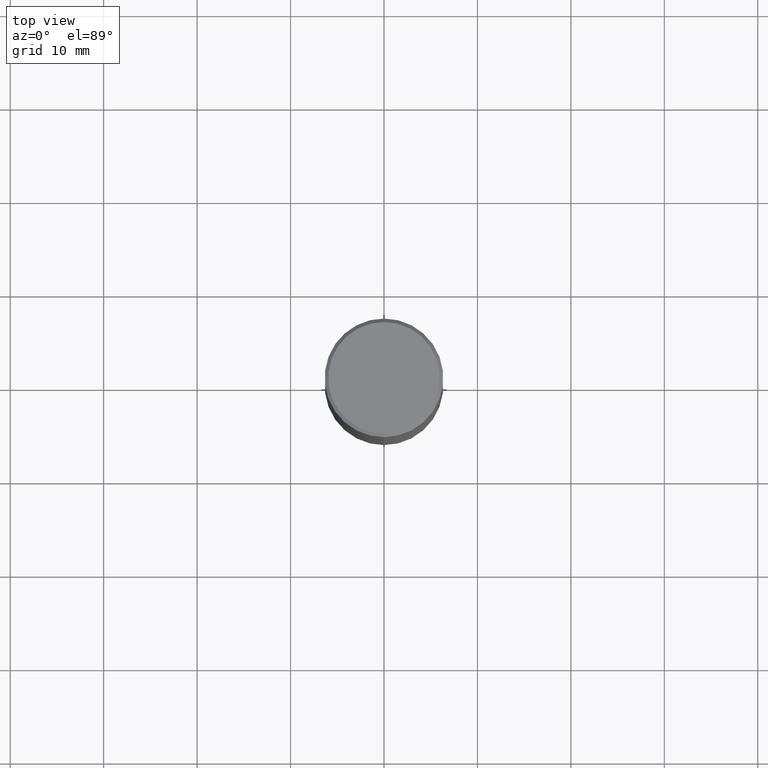
[diagram: clean part render]
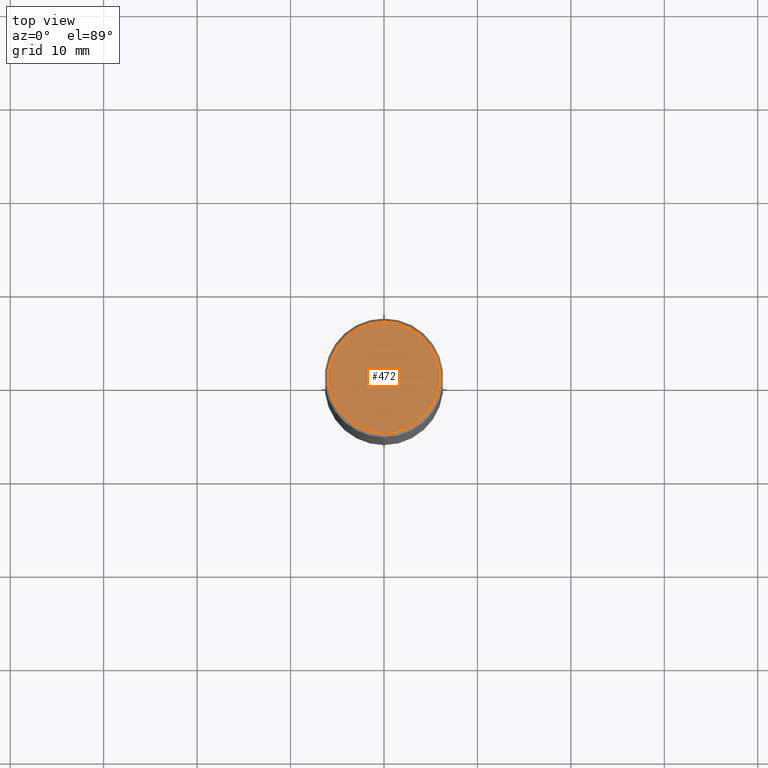
[diagram: same view with one face highlighted and labeled with its STEP entity id]
A machine part, top view. The second image highlights one B-rep face of the part: STEP entity #472.
In plain terms, the highlighted planar face has unit normal (0, -0, -1).
Its self-contained STEP definition (entity closure, byte-faithful):
#3 = CARTESIAN_POINT ( 'NONE',  ( 1.693368449338919598E-15, 0.2349999999999999867, -9.852262505269361309E-16 ) ) ;
#22 = EDGE_LOOP ( 'NONE', ( #500, #244 ) ) ;
#58 = FACE_OUTER_BOUND ( 'NONE', #22, .T. ) ;
#69 = AXIS2_PLACEMENT_3D ( 'NONE', #348, #261, #224 ) ;
#93 = DIRECTION ( 'NONE',  ( -6.982962677686266711E-15, -1.000000000000000000, 3.491087603084271144E-15 ) ) ;
#102 = DIRECTION ( 'NONE',  ( -2.445743750396045645E-29, 3.491087603084271144E-15, 1.000000000000000000 ) ) ;
#118 = CIRCLE ( 'NONE', #304, 0.2349999999999999867 ) ;
#121 = EDGE_CURVE ( 'NONE', #183, #407, #118, .T. ) ;
#134 = CIRCLE ( 'NONE', #149, 0.2349999999999999867 ) ;
#149 = AXIS2_PLACEMENT_3D ( 'NONE', #406, #401, #93 ) ;
#183 = VERTEX_POINT ( 'NONE', #3 ) ;
#224 = DIRECTION ( 'NONE',  ( 6.982962677686265922E-15, 1.000000000000000000, -3.491087603084271538E-15 ) ) ;
#244 = ORIENTED_EDGE ( 'NONE', *, *, #352, .T. ) ;
#257 = DIRECTION ( 'NONE',  ( -6.982962677686266711E-15, -1.000000000000000000, 3.491087603084271144E-15 ) ) ;
#261 = DIRECTION ( 'NONE',  ( 2.445743750396045085E-29, -3.491087603084271538E-15, -1.000000000000000000 ) ) ;
#289 = CARTESIAN_POINT ( 'NONE',  ( -1.663670764459595899E-15, -0.2349999999999999867, 6.555849229226711764E-16 ) ) ;
#298 = PLANE ( 'NONE',  #69 ) ;
#304 = AXIS2_PLACEMENT_3D ( 'NONE', #460, #102, #257 ) ;
#348 = CARTESIAN_POINT ( 'NONE',  ( 1.640996229256272519E-15, 0.2349999999999999867, -9.028159186258698676E-16 ) ) ;
#352 = EDGE_CURVE ( 'NONE', #407, #183, #134, .T. ) ;
#401 = DIRECTION ( 'NONE',  ( -2.445743750396045645E-29, 3.491087603084271144E-15, 1.000000000000000000 ) ) ;
#406 = CARTESIAN_POINT ( 'NONE',  ( 4.031091084301932557E-45, -5.754033761317450784E-31, -1.648206638021324526E-16 ) ) ;
#407 = VERTEX_POINT ( 'NONE', #289 ) ;
#460 = CARTESIAN_POINT ( 'NONE',  ( 4.031091084301932557E-45, -5.754033761317450784E-31, -1.648206638021324526E-16 ) ) ;
#472 = ADVANCED_FACE ( 'NONE', ( #58 ), #298, .F. ) ;
#500 = ORIENTED_EDGE ( 'NONE', *, *, #121, .T. ) ;